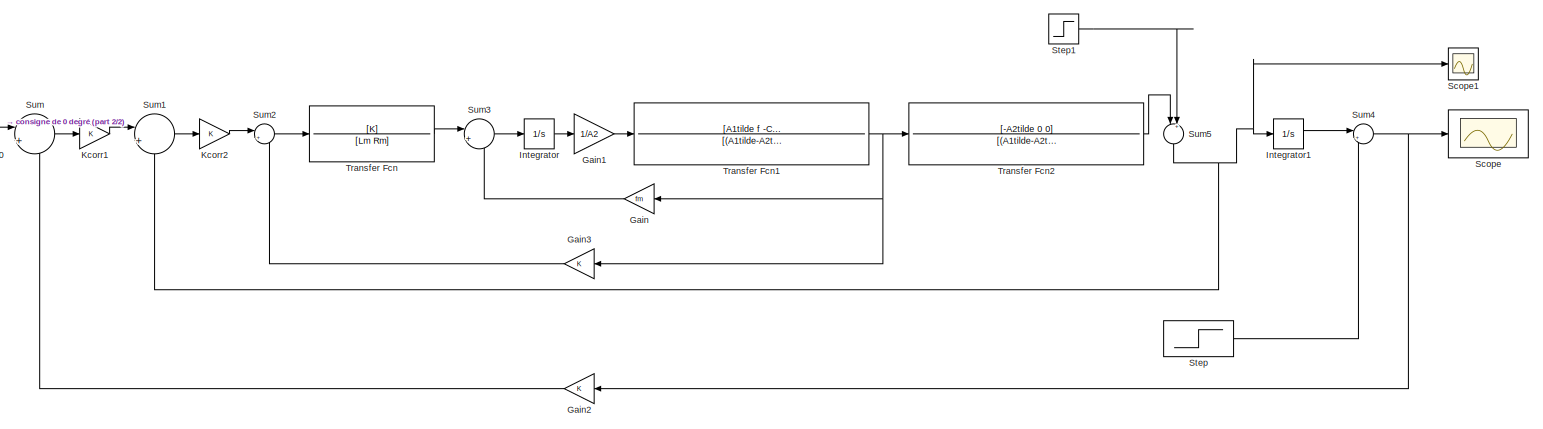
[diagram: root canvas - part 1/2, most of the canvas]
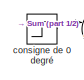
[diagram: root canvas - part 2/2, middle left region]
MODEL slx_f35c04bb26bc
KIND model
CONFIG AbsTol = auto
CONFIG EnableMultiTasking = off
CONFIG FixedStep = auto
CONFIG InitFcn = Rm=3.15;\nLm=0.0015;\nK=1.028;\nfm=0.16805;\nA2=0.0033153;\nA1=0.045721;\nL01=0.2625;\nm2=0.24355;\nA1tilde=A1+A2+m2*L01*L01;\nA2tilde=A1tilde-A2;\nf=0.070633;\nlg1=0.16655703376925832;\nm1=0.66984;\ng=9.8;\nCeq=L01*m2*g+lg1*m1*g;\n\n
CONFIG MaxStep = auto
CONFIG MinStep = auto
CONFIG RelTol = 1e-3
CONFIG SampleTimeConstraint = Unconstrained
CONFIG SolverName = VariableStepAuto
CONFIG StartTime = 0.0
CONFIG StopTime = 10
BLOCK [Gain] Gain
  Gain = fm
  NameLocation = top
BLOCK [Gain] Gain1
  Gain = 1/A2
BLOCK [Gain] Gain2
  NameLocation = top
BLOCK [Gain] Gain3
  Gain = K
  NameLocation = top
BLOCK [Integrator] Integrator
BLOCK [Integrator] Integrator1
BLOCK [Gain] Kcorr1
BLOCK [Gain] Kcorr2
BLOCK [Scope] Scope
  Floating = off
  NumInputPorts = 1
  ScopeSpecificationString = Simulink.scopes.TimeScopeBlockCfg('CurrentConfiguration', extmgr.ConfigurationSet(extmgr.Configuration('Core','General UI',true),extmgr.Configuration('Core','Source UI',true),extmgr.Configuration('Sources','WiredSimulink',true),extmgr.Configuration('Visuals','Time Domain',true,'SerializedDisplays',{struct('MinYLimReal','-0.00098','MaxYLimReal','0.00879','YLabelReal','','MinYLimMag','0.00000','MaxY...<+1401ch>
BLOCK [Scope] Scope1
  Floating = off
  NumInputPorts = 1
  ScopeSpecificationString = Simulink.scopes.TimeScopeBlockCfg('CurrentConfiguration', extmgr.ConfigurationSet(extmgr.Configuration('Core','General UI',true),extmgr.Configuration('Core','Source UI',true),extmgr.Configuration('Sources','WiredSimulink',true,'DataLoggingVariableName','ScopeData1'),extmgr.Configuration('Visuals','Time Domain',true,'SerializedDisplays',{struct('MinYLimReal','-1.00000','MaxYLimReal','1.00000','YLab...<+1363ch>
BLOCK [Step] Step
  After = 0
  SampleTime = 0
  Time = 10
BLOCK [Step] Step1
  After = 0.1
  SampleTime = 0
  Time = 0.0001
BLOCK [Sum] Sum
  Inputs = |+-
BLOCK [Sum] Sum1
  Inputs = |+-
BLOCK [Sum] Sum2
  Inputs = |+-
BLOCK [Sum] Sum3
  Inputs = |+-
BLOCK [Sum] Sum4
  Inputs = |++
BLOCK [Sum] Sum5
  Inputs = |++
  NameLocation = left
BLOCK [TransferFcn] Transfer Fcn
  Denominator = [Lm Rm]
  Numerator = [K]
BLOCK [TransferFcn] Transfer Fcn1
  Denominator = [(A1tilde-A2tilde) f -Ceq]
  Numerator = [A1tilde f -Ceq]
BLOCK [TransferFcn] Transfer Fcn2
  Denominator = [(A1tilde-A2tilde) f -Ceq]
  Numerator = [-A2tilde 0 0]
BLOCK [Step] consigne de 0 degré
  After = 0
  SampleTime = 0
  Time = 10
LINE Gain1:1 -> Transfer Fcn1:1
LINE Gain2:1 -> Sum:2
LINE Gain3:1 -> Sum2:2
LINE Gain:1 -> Sum3:2
LINE Integrator1:1 -> Sum4:1
LINE Integrator:1 -> Gain1:1
LINE Kcorr1:1 -> Sum1:1
LINE Kcorr2:1 -> Sum2:1
LINE Step1:1 -> Sum5:2
LINE Step:1 -> Sum4:2
LINE Sum1:1 -> Kcorr2:1
LINE Sum2:1 -> Transfer Fcn:1
LINE Sum3:1 -> Integrator:1
NET Sum4:1 -> Gain2:1, Scope:1
NET Sum5:1 -> Integrator1:1, Scope1:1, Sum1:2
LINE Sum:1 -> Kcorr1:1
NET Transfer Fcn1:1 -> Gain3:1, Gain:1, Transfer Fcn2:1
LINE Transfer Fcn2:1 -> Sum5:1
LINE Transfer Fcn:1 -> Sum3:1
LINE consigne de 0 degré:1 -> Sum:1
note: NET lines group one-source signal fan-out (src -> all destinations, sorted); 1:1 wires keep LINE
